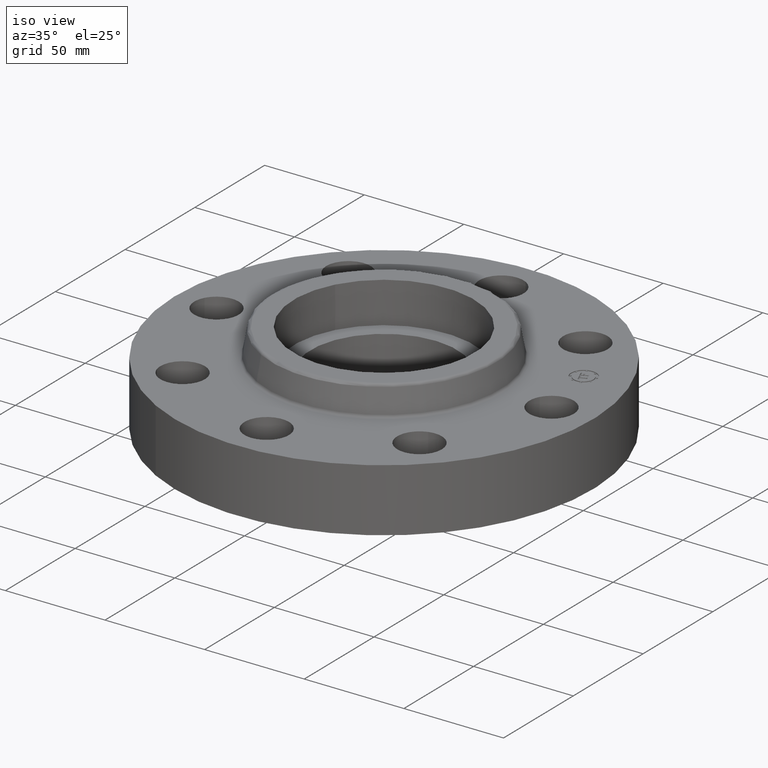
[diagram: clean part render]
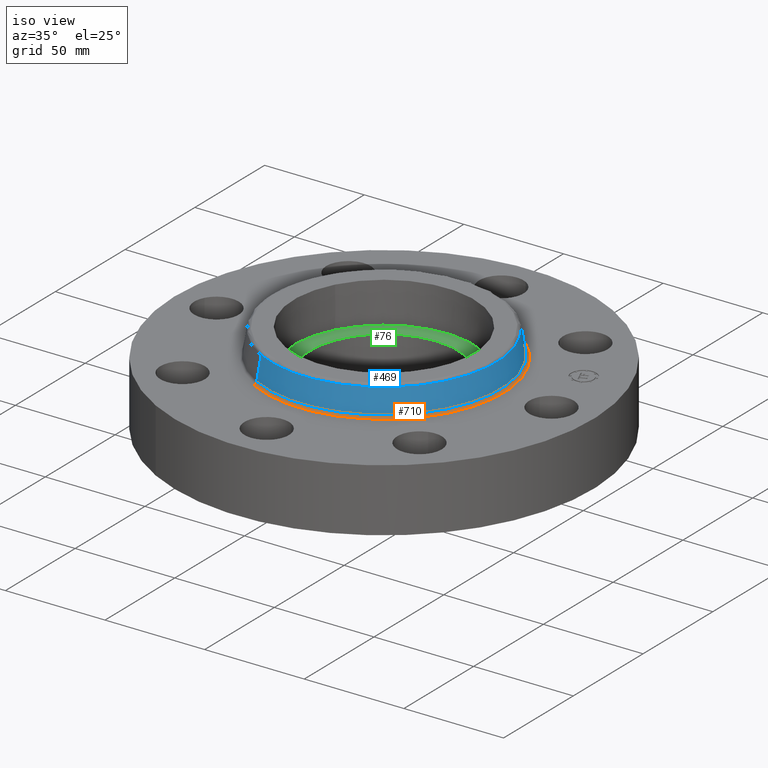
[diagram: same view with three faces highlighted in distinct colors, each labeled with its STEP entity id]
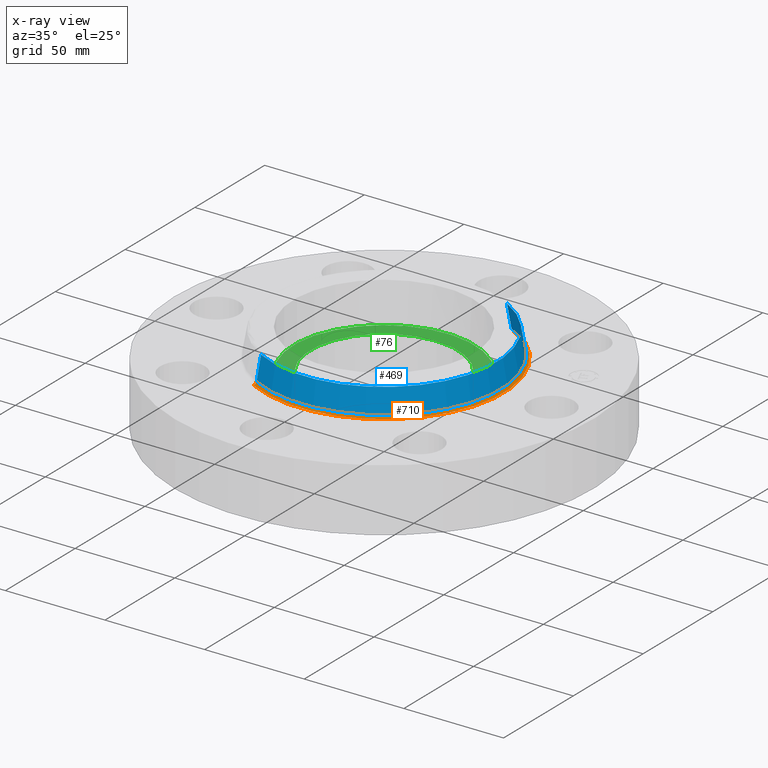
[diagram: x-ray of the same camera — body ghosted, the three highlighted faces saturated]
A machine part, iso view with three faces highlighted in distinct colors.
The next image is the same camera in x-ray (body ghosted, the three faces saturated) — at least one of them is partly hidden behind the body in this view.
Their STEP definitions:

[orange] entity #710 — the highlighted toroidal blend (fillet) surface has major radius 59.9528 mm and minor (blend) radius 1.524 mm.
#446=AXIS2_PLACEMENT_3D('Circle Axis2P3D',#444,#445,$) ;
#683=AXIS2_PLACEMENT_3D('Torus Axis2P3D',#680,#681,#682) ;
#687=AXIS2_PLACEMENT_3D('Circle Axis2P3D',#685,#686,$) ;
#696=AXIS2_PLACEMENT_3D('Circle Axis2P3D',#694,#695,$) ;
#701=AXIS2_PLACEMENT_3D('Circle Axis2P3D',#699,#700,$) ;
#444=CARTESIAN_POINT('Axis2P3D Location',(0.,0.,1.29958110935)) ;
#448=CARTESIAN_POINT('Vertex',(1.10328162249,2.01954346356,1.29958110935)) ;
#450=CARTESIAN_POINT('Vertex',(-1.10328162249,-2.01954346356,1.29958110935)) ;
#680=CARTESIAN_POINT('Axis2P3D Location',(0.,0.,1.31000000001)) ;
#685=CARTESIAN_POINT('Axis2P3D Location',(0.,0.,1.25000000001)) ;
#689=CARTESIAN_POINT('Vertex',(1.13161014174,2.07139847022,1.25000000001)) ;
#691=CARTESIAN_POINT('Vertex',(-1.13161014174,-2.07139847022,1.25000000001)) ;
#694=CARTESIAN_POINT('Axis2P3D Location',(1.13161014174,2.07139847022,1.31000000001)) ;
#699=CARTESIAN_POINT('Axis2P3D Location',(-1.13161014174,-2.07139847022,1.31000000001)) ;
#445=DIRECTION('Axis2P3D Direction',(-0.,0.,-0.0393700787402)) ;
#681=DIRECTION('Axis2P3D Direction',(0.,0.,-0.0393700787402)) ;
#682=DIRECTION('Axis2P3D XDirection',(0.0188750212049,0.0345504945626,0.)) ;
#686=DIRECTION('Axis2P3D Direction',(-0.,0.,-0.0393700787402)) ;
#695=DIRECTION('Axis2P3D Direction',(-0.0345504945626,0.0188750212049,0.)) ;
#700=DIRECTION('Axis2P3D Direction',(0.0345504945626,-0.0188750212049,0.)) ;
#705=ORIENTED_EDGE('',*,*,#693,.F.) ;
#706=ORIENTED_EDGE('',*,*,#698,.T.) ;
#707=ORIENTED_EDGE('',*,*,#452,.T.) ;
#708=ORIENTED_EDGE('',*,*,#703,.F.) ;
#710=ADVANCED_FACE('PartBody',(#709),#684,.F.) ;
#447=CIRCLE('generated circle',#446,2.3012575127) ;
#688=CIRCLE('generated circle',#687,2.36034597788) ;
#697=CIRCLE('generated circle',#696,0.0600000000002) ;
#702=CIRCLE('generated circle',#701,0.0600000000002) ;
#684=TOROIDAL_SURFACE('homeo Torus',#683,2.36034597788,0.0600000000002) ;
#452=EDGE_CURVE('',#449,#451,#447,.T.) ;
#693=EDGE_CURVE('',#690,#692,#688,.T.) ;
#698=EDGE_CURVE('',#690,#449,#697,.T.) ;
#703=EDGE_CURVE('',#692,#451,#702,.T.) ;
#704=EDGE_LOOP('',(#705,#706,#707,#708)) ;
#709=FACE_OUTER_BOUND('',#704,.T.) ;
#449=VERTEX_POINT('',#448) ;
#451=VERTEX_POINT('',#450) ;
#690=VERTEX_POINT('',#689) ;
#692=VERTEX_POINT('',#691) ;

[blue] entity #469 — the highlighted conical surface has half-angle 10 deg.
#310=AXIS2_PLACEMENT_3D('Circle Axis2P3D',#308,#309,$) ;
#442=AXIS2_PLACEMENT_3D('Cone Axis2P3D',#439,#440,#441) ;
#446=AXIS2_PLACEMENT_3D('Circle Axis2P3D',#444,#445,$) ;
#308=CARTESIAN_POINT('Axis2P3D Location',(0.,0.,1.76041889067)) ;
#312=CARTESIAN_POINT('Vertex',(1.06432439756,1.94823274165,1.76041889067)) ;
#314=CARTESIAN_POINT('Vertex',(-1.06432439756,-1.94823274165,1.76041889067)) ;
#439=CARTESIAN_POINT('Axis2P3D Location',(0.,0.,1.76041889067)) ;
#444=CARTESIAN_POINT('Axis2P3D Location',(0.,0.,1.29958110935)) ;
#448=CARTESIAN_POINT('Vertex',(1.10328162249,2.01954346356,1.29958110935)) ;
#450=CARTESIAN_POINT('Vertex',(-1.10328162249,-2.01954346356,1.29958110935)) ;
#453=CARTESIAN_POINT('Line Origine',(1.08380301002,1.9838881026,1.53000000001)) ;
#458=CARTESIAN_POINT('Line Origine',(-1.08380301002,-1.9838881026,1.53000000001)) ;
#309=DIRECTION('Axis2P3D Direction',(-0.,0.,-0.0393700787402)) ;
#440=DIRECTION('Axis2P3D Direction',(0.,0.,-0.0393700787402)) ;
#441=DIRECTION('Axis2P3D XDirection',(0.0188750212049,0.0345504945626,0.)) ;
#445=DIRECTION('Axis2P3D Direction',(-0.,0.,-0.0393700787402)) ;
#454=DIRECTION('Vector Direction',(0.00327761303565,0.00599963041827,-0.03877195878)) ;
#459=DIRECTION('Vector Direction',(-0.00327761303565,-0.00599963041827,-0.03877195878)) ;
#455=VECTOR('Line Direction',#454,0.0393700787402) ;
#460=VECTOR('Line Direction',#459,0.0393700787402) ;
#464=ORIENTED_EDGE('',*,*,#452,.F.) ;
#465=ORIENTED_EDGE('',*,*,#457,.T.) ;
#466=ORIENTED_EDGE('',*,*,#316,.T.) ;
#467=ORIENTED_EDGE('',*,*,#462,.F.) ;
#469=ADVANCED_FACE('PartBody',(#468),#443,.T.) ;
#311=CIRCLE('generated circle',#310,2.21999937812) ;
#447=CIRCLE('generated circle',#446,2.3012575127) ;
#443=CONICAL_SURFACE('Cone',#442,2.21999937812,0.174532925199) ;
#316=EDGE_CURVE('',#313,#315,#311,.T.) ;
#452=EDGE_CURVE('',#449,#451,#447,.T.) ;
#457=EDGE_CURVE('',#449,#313,#456,.F.) ;
#462=EDGE_CURVE('',#451,#315,#461,.F.) ;
#463=EDGE_LOOP('',(#464,#465,#466,#467)) ;
#468=FACE_OUTER_BOUND('',#463,.T.) ;
#456=LINE('Line',#453,#455) ;
#461=LINE('Line',#458,#460) ;
#313=VERTEX_POINT('',#312) ;
#315=VERTEX_POINT('',#314) ;
#449=VERTEX_POINT('',#448) ;
#451=VERTEX_POINT('',#450) ;

[green] entity #76 — the highlighted planar face has unit normal (0, 0, -1).
#38=AXIS2_PLACEMENT_3D('Plane Axis2P3D',#35,#36,#37) ;
#42=AXIS2_PLACEMENT_3D('Circle Axis2P3D',#40,#41,$) ;
#51=AXIS2_PLACEMENT_3D('Circle Axis2P3D',#49,#50,$) ;
#60=AXIS2_PLACEMENT_3D('Circle Axis2P3D',#58,#59,$) ;
#69=AXIS2_PLACEMENT_3D('Circle Axis2P3D',#67,#68,$) ;
#35=CARTESIAN_POINT('Axis2P3D Location',(1.39870617276E-016,3.84644197508E-016,1.)) ;
#40=CARTESIAN_POINT('Axis2P3D Location',(3.49676543189E-016,-4.54579506146E-016,1.)) ;
#44=CARTESIAN_POINT('Vertex',(-1.566484873,0.855774586419,1.)) ;
#46=CARTESIAN_POINT('Vertex',(1.566484873,-0.855774586419,1.)) ;
#49=CARTESIAN_POINT('Axis2P3D Location',(-6.99353086374E-017,1.22386790116E-015,1.)) ;
#58=CARTESIAN_POINT('Axis2P3D Location',(1.39870617276E-016,3.84644197508E-016,1.)) ;
#62=CARTESIAN_POINT('Vertex',(-0.695167030978,-1.27249471477,1.)) ;
#64=CARTESIAN_POINT('Vertex',(0.695167030978,1.27249471477,1.)) ;
#67=CARTESIAN_POINT('Axis2P3D Location',(1.39870617276E-016,3.84644197508E-016,1.)) ;
#36=DIRECTION('Axis2P3D Direction',(0.,0.,-0.0393700787402)) ;
#37=DIRECTION('Axis2P3D XDirection',(0.0393700787402,0.,0.)) ;
#41=DIRECTION('Axis2P3D Direction',(0.,0.,-0.0393700787402)) ;
#50=DIRECTION('Axis2P3D Direction',(0.,0.,-0.0393700787402)) ;
#59=DIRECTION('Axis2P3D Direction',(0.,0.,-0.0393700787402)) ;
#68=DIRECTION('Axis2P3D Direction',(0.,0.,-0.0393700787402)) ;
#55=ORIENTED_EDGE('',*,*,#48,.F.) ;
#56=ORIENTED_EDGE('',*,*,#53,.F.) ;
#73=ORIENTED_EDGE('',*,*,#66,.T.) ;
#74=ORIENTED_EDGE('',*,*,#71,.T.) ;
#75=FACE_BOUND('',#72,.T.) ;
#76=ADVANCED_FACE('PartBody',(#57,#75),#39,.F.) ;
#43=CIRCLE('generated circle',#42,1.78500000003) ;
#52=CIRCLE('generated circle',#51,1.78500000003) ;
#61=CIRCLE('generated circle',#60,1.45000000002) ;
#70=CIRCLE('generated circle',#69,1.45000000002) ;
#48=EDGE_CURVE('',#45,#47,#43,.T.) ;
#53=EDGE_CURVE('',#47,#45,#52,.T.) ;
#66=EDGE_CURVE('',#63,#65,#61,.T.) ;
#71=EDGE_CURVE('',#65,#63,#70,.T.) ;
#54=EDGE_LOOP('',(#55,#56)) ;
#72=EDGE_LOOP('',(#73,#74)) ;
#57=FACE_OUTER_BOUND('',#54,.T.) ;
#39=PLANE('',#38) ;
#45=VERTEX_POINT('',#44) ;
#47=VERTEX_POINT('',#46) ;
#63=VERTEX_POINT('',#62) ;
#65=VERTEX_POINT('',#64) ;